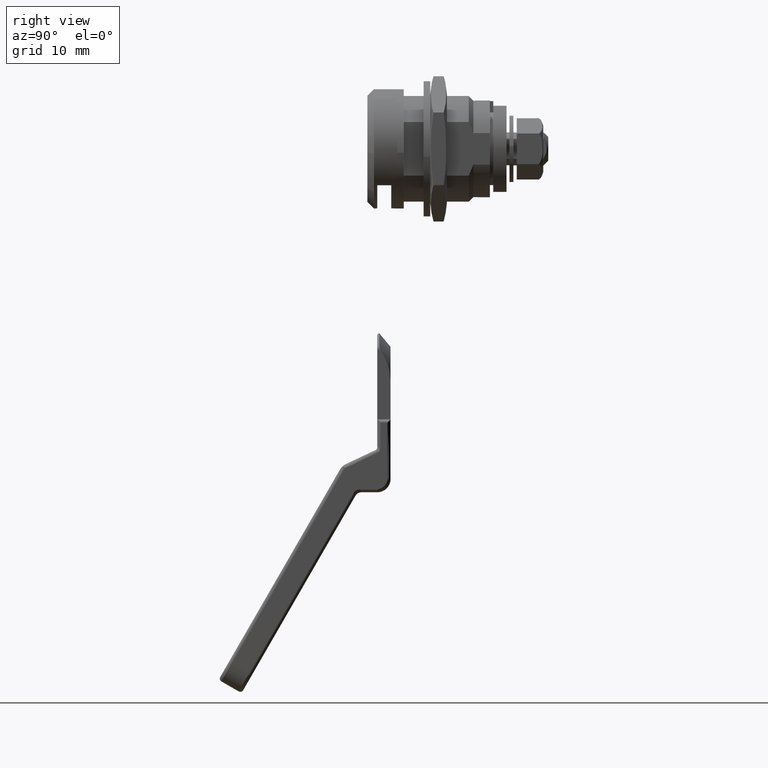
[diagram: clean part render]
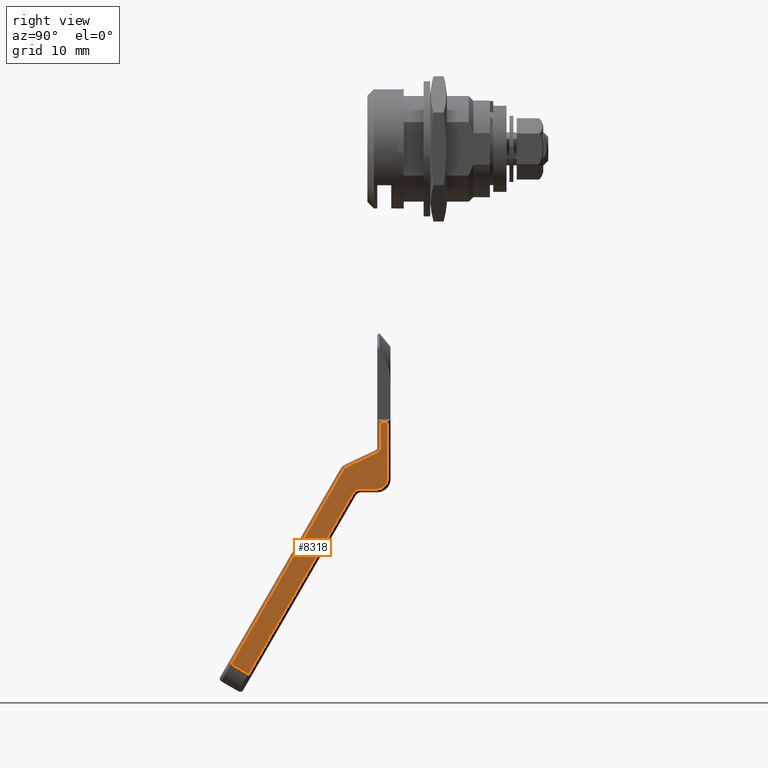
[diagram: same view with one face highlighted and labeled with its STEP entity id]
A machine part, right view. The second image highlights one B-rep face of the part: STEP entity #8318.
In plain terms, the highlighted face is a freeform B-spline surface patch.
Its self-contained STEP definition (entity closure, byte-faithful):
#6352=CARTESIAN_POINT('',(1.999992000000000,-6.999992000000000,-71.348297000000002));
#6353=VERTEX_POINT('',#6352);
#6374=CARTESIAN_POINT('',(1.999991999999975,-6.999992000000000,-75.031097000000003));
#6375=VERTEX_POINT('',#6374);
#6391=CARTESIAN_POINT('',(1.999992000000000,-6.999992000000000,-71.348297000000002));
#6392=CARTESIAN_POINT('',(1.999991999999975,-6.999992000000000,-75.031097000000003));
#6393=QUASI_UNIFORM_CURVE('',1,(#6391,#6392),.UNSPECIFIED.,.F.,.U.);
#6394=EDGE_CURVE('',#6353,#6375,#6393,.T.);
#6413=CARTESIAN_POINT('',(1.417033459246728,-6.999992000000000,-75.939984463478993));
#6414=VERTEX_POINT('',#6413);
#6472=CARTESIAN_POINT('',(-3.454696070230035,-6.999992000000000,-78.233928652503906));
#6473=VERTEX_POINT('',#6472);
#6487=CARTESIAN_POINT('',(1.417033459246728,-6.999992000000000,-75.939984463478993));
#6488=CARTESIAN_POINT('',(-3.454696070230035,-6.999992000000000,-78.233928652503906));
#6489=QUASI_UNIFORM_CURVE('',1,(#6487,#6488),.UNSPECIFIED.,.F.,.U.);
#6490=EDGE_CURVE('',#6414,#6473,#6489,.T.);
#6512=CARTESIAN_POINT('',(1.999991999999978,-6.999992000000000,-75.031097000000003));
#6513=CARTESIAN_POINT('',(1.999991999999979,-6.999992000000000,-75.672494933383092));
#6514=CARTESIAN_POINT('',(1.417033459246743,-6.999992000000000,-75.939984463479021));
#6522=(BOUNDED_CURVE()B_SPLINE_CURVE(2,(#6512,#6513,#6514),.UNSPECIFIED.,.F.,.U.)CURVE()GEOMETRIC_REPRESENTATION_ITEM()QUASI_UNIFORM_CURVE()RATIONAL_B_SPLINE_CURVE((1.0,0.841736734153490,1.0))REPRESENTATION_ITEM(''));
#6523=EDGE_CURVE('',#6375,#6414,#6522,.T.);
#6557=CARTESIAN_POINT('',(2.999992000000000,-6.999992000000000,-79.848297000000002));
#6558=VERTEX_POINT('',#6557);
#6581=CARTESIAN_POINT('',(2.999992000000000,-6.999992000000000,-71.348297000000002));
#6582=VERTEX_POINT('',#6581);
#6596=CARTESIAN_POINT('',(2.999992000000000,-6.999992000000000,-79.848297000000002));
#6597=CARTESIAN_POINT('',(2.999992000000000,-6.999992000000000,-71.348297000000002));
#6598=QUASI_UNIFORM_CURVE('',1,(#6596,#6597),.UNSPECIFIED.,.F.,.U.);
#6599=EDGE_CURVE('',#6558,#6582,#6598,.T.);
#6623=CARTESIAN_POINT('',(1.499991999999976,-6.999992000000000,-81.348297000000002));
#6624=VERTEX_POINT('',#6623);
#6654=CARTESIAN_POINT('',(1.499991999999978,-6.999992000000000,-81.348297000000002));
#6655=CARTESIAN_POINT('',(2.121312343559620,-6.999992000000000,-81.348297000000002));
#6656=CARTESIAN_POINT('',(2.560652171779798,-6.999992000000000,-80.908957171779818));
#6657=CARTESIAN_POINT('',(2.999991999999978,-6.999992000000000,-80.469617343559648));
#6658=CARTESIAN_POINT('',(2.999991999999979,-6.999992000000000,-79.848297000000002));
#6666=(BOUNDED_CURVE()B_SPLINE_CURVE(2,(#6654,#6655,#6656,#6657,#6658),.UNSPECIFIED.,.F.,.U.)B_SPLINE_CURVE_WITH_KNOTS((3,2,3),(0.0,0.500000000000000,1.0),.UNSPECIFIED.)CURVE()GEOMETRIC_REPRESENTATION_ITEM()RATIONAL_B_SPLINE_CURVE((1.0,0.923879532511287,1.0,0.923879532511287,1.0))REPRESENTATION_ITEM(''));
#6667=EDGE_CURVE('',#6624,#6558,#6666,.T.);
#7108=CARTESIAN_POINT('',(-17.933016690139350,-6.999992000000000,-109.311113194066190));
#7109=VERTEX_POINT('',#7108);
#7171=CARTESIAN_POINT('',(-2.221724980462175,-6.999992000000000,-82.098290482497887));
#7172=VERTEX_POINT('',#7171);
#7188=CARTESIAN_POINT('',(-17.933016690139350,-6.999992000000000,-109.311113194066190));
#7189=CARTESIAN_POINT('',(-2.221724980462175,-6.999992000000000,-82.098290482497887));
#7190=QUASI_UNIFORM_CURVE('',1,(#7188,#7189),.UNSPECIFIED.,.F.,.U.);
#7191=EDGE_CURVE('',#7109,#7172,#7190,.T.);
#7221=CARTESIAN_POINT('',(-0.922572319408263,-6.999992000000000,-81.348297001805093));
#7222=VERTEX_POINT('',#7221);
#7236=CARTESIAN_POINT('',(-2.221724980462186,-6.999992000000000,-82.098290482497887));
#7237=CARTESIAN_POINT('',(-1.788674634689389,-6.999992000000000,-81.348223402845548));
#7238=CARTESIAN_POINT('',(-0.922572319408263,-6.999992000000000,-81.348297001805093));
#7246=(BOUNDED_CURVE()B_SPLINE_CURVE(2,(#7236,#7237,#7238),.UNSPECIFIED.,.F.,.U.)CURVE()GEOMETRIC_REPRESENTATION_ITEM()QUASI_UNIFORM_CURVE()RATIONAL_B_SPLINE_CURVE((1.0,0.866003887560242,1.0))REPRESENTATION_ITEM(''));
#7247=EDGE_CURVE('',#7172,#7222,#7246,.T.);
#7286=CARTESIAN_POINT('',(-0.922572319408263,-6.999992000000000,-81.348297001805093));
#7287=CARTESIAN_POINT('',(1.499991999999976,-6.999992000000000,-81.348297000000002));
#7288=QUASI_UNIFORM_CURVE('',1,(#7286,#7287),.UNSPECIFIED.,.F.,.U.);
#7289=EDGE_CURVE('',#7222,#6624,#7288,.T.);
#7309=CARTESIAN_POINT('',(-20.531095064597849,-6.999992000000000,-107.811124524783000));
#7310=VERTEX_POINT('',#7309);
#7311=CARTESIAN_POINT('',(-3.454696070230035,-6.999992000000000,-78.233928652503906));
#7312=CARTESIAN_POINT('',(-20.531095064597849,-6.999992000000000,-107.811124524783000));
#7313=QUASI_UNIFORM_CURVE('',1,(#7311,#7312),.UNSPECIFIED.,.F.,.U.);
#7314=EDGE_CURVE('',#6473,#7310,#7313,.T.);
#7666=CARTESIAN_POINT('',(-20.531095064597849,-6.999992000000000,-107.811124524783000));
#7667=CARTESIAN_POINT('',(-17.933016690139350,-6.999992000000000,-109.311113194066190));
#7668=QUASI_UNIFORM_CURVE('',1,(#7666,#7667),.UNSPECIFIED.,.F.,.U.);
#7669=EDGE_CURVE('',#7310,#7109,#7668,.T.);
#7999=CARTESIAN_POINT('',(1.999992000000000,-6.999992000000000,-71.348297000000002));
#8000=CARTESIAN_POINT('',(2.999992000000000,-6.999992000000000,-71.348297000000002));
#8001=QUASI_UNIFORM_CURVE('',1,(#7999,#8000),.UNSPECIFIED.,.F.,.U.);
#8002=EDGE_CURVE('',#6353,#6582,#8001,.T.);
#8300=CARTESIAN_POINT('',(-21.706473259652721,-6.999992000000000,-69.452054540315558));
#8301=CARTESIAN_POINT('',(4.175370405439179,-6.999992000000000,-69.452054540315558));
#8302=CARTESIAN_POINT('',(-21.706473259652721,-6.999992000000000,-111.207353956680510));
#8303=CARTESIAN_POINT('',(4.175370405439179,-6.999992000000000,-111.207353956680510));
#8304=B_SPLINE_SURFACE_WITH_KNOTS('',1,1,((#8300,#8302),(#8301,#8303)),.UNSPECIFIED.,.F.,.F.,.U.,(2,2),(2,2),(0.0,25.881843665091900),(0.0,41.755299416364949),.UNSPECIFIED.);
#8305=ORIENTED_EDGE('',*,*,#8002,.F.);
#8306=ORIENTED_EDGE('',*,*,#6394,.T.);
#8307=ORIENTED_EDGE('',*,*,#6523,.T.);
#8308=ORIENTED_EDGE('',*,*,#6490,.T.);
#8309=ORIENTED_EDGE('',*,*,#7314,.T.);
#8310=ORIENTED_EDGE('',*,*,#7669,.T.);
#8311=ORIENTED_EDGE('',*,*,#7191,.T.);
#8312=ORIENTED_EDGE('',*,*,#7247,.T.);
#8313=ORIENTED_EDGE('',*,*,#7289,.T.);
#8314=ORIENTED_EDGE('',*,*,#6667,.T.);
#8315=ORIENTED_EDGE('',*,*,#6599,.T.);
#8316=EDGE_LOOP('',(#8305,#8306,#8307,#8308,#8309,#8310,#8311,#8312,#8313,#8314,#8315));
#8317=FACE_OUTER_BOUND('',#8316,.T.);
#8318=ADVANCED_FACE('',(#8317),#8304,.F.);